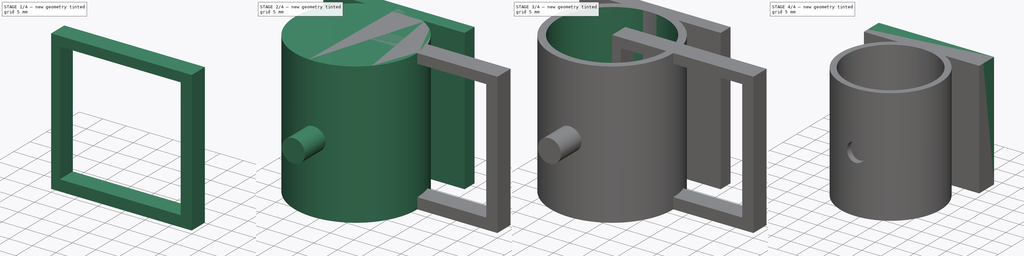
[diagram: build sequence overview — one tinted view per stage of 4, left to right]
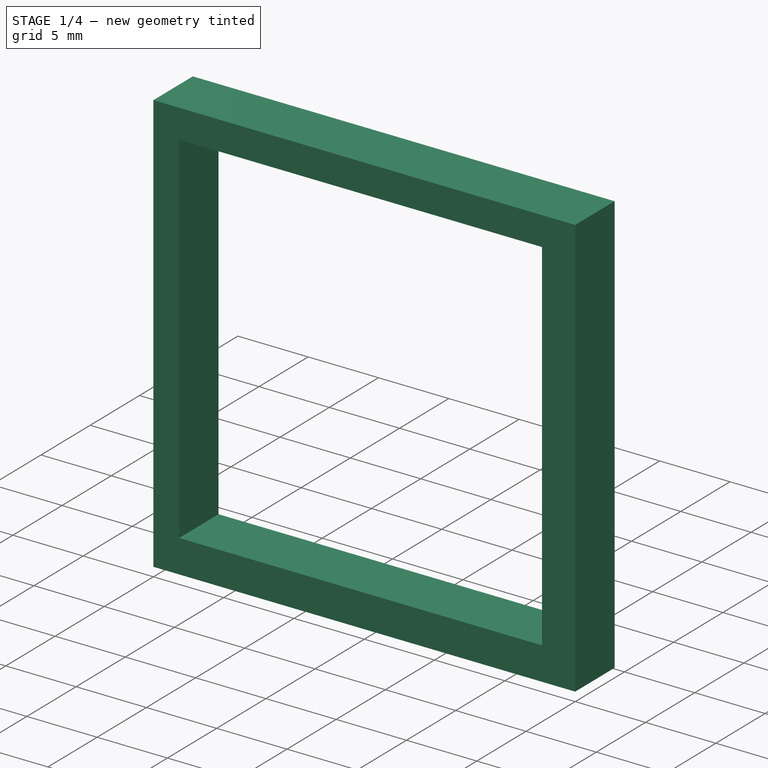
[diagram: stage 1 of 4 — iso view after this stage's code; geometry added in this stage tinted green]
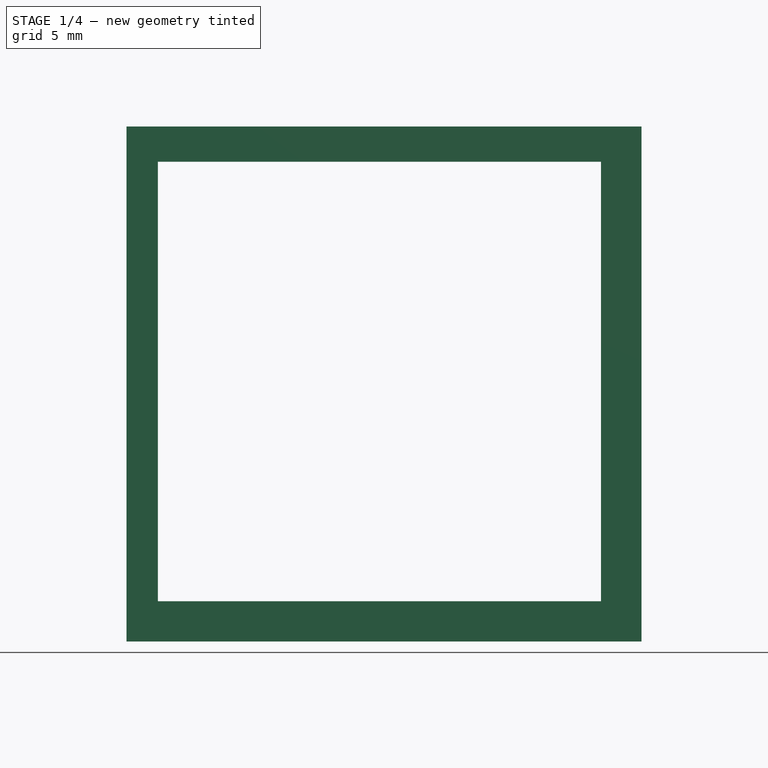
[diagram: stage 1 of 4 — front view after this stage's code; geometry added in this stage tinted green]
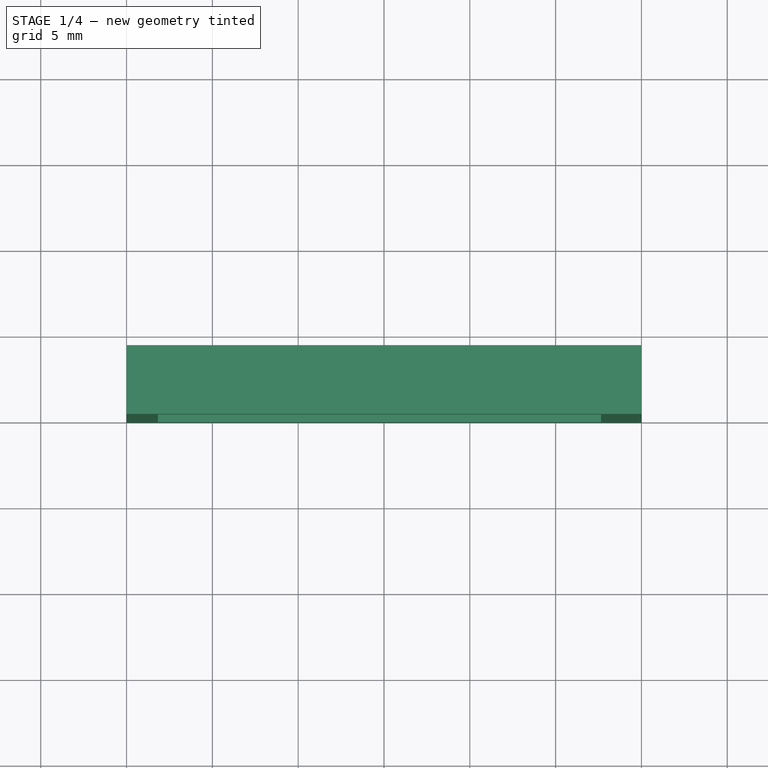
[diagram: stage 1 of 4 — top view after this stage's code; geometry added in this stage tinted green]
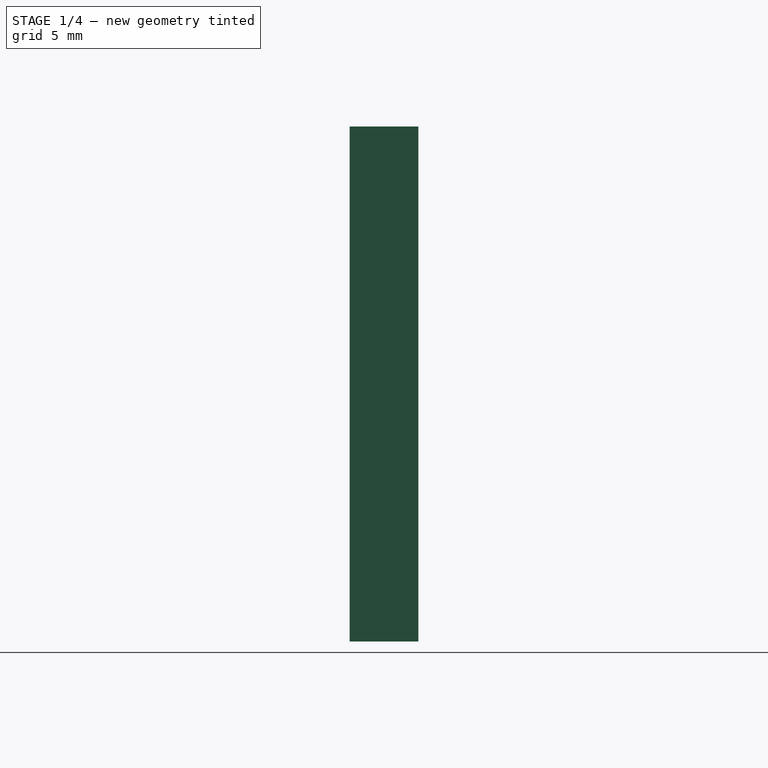
[diagram: stage 1 of 4 — right view after this stage's code; geometry added in this stage tinted green]
FCSTD DOCUMENT  (FreeCAD 0.21R33771 (Git))
Label: laserholder
License: All rights reserved
LicenseURL: https://en.wikipedia.org/wiki/All_rights_reserved
objects: Part::Compound×3, PartDesign::Body×2, Part::Box×2, PartDesign::AdditiveCylinder×1, PartDesign::SubtractiveCylinder×1, Part::Cylinder×1, Part::Cut×1, PartDesign::FeatureBase×1, Sketcher::SketchObject×1, PartDesign::Pocket×1
note: 17 computed .brp shape members not serialized (recipe doc carries the construction recipe); baked Part::Feature solids carry a one-line shape summary decoded from their .brp

FEATURE [Part::Box] Box001  label="Cube001"
  AttacherType = Attacher::AttachEngine3D
  Height = 30
  Length = 30
  Placement = pos=(-15,13,0) rot=(0,0,1;0rad)
  Width = 4
FEATURE [PartDesign::FeatureBase] BaseFeature
  BaseFeature = -> Box001
FEATURE [Sketcher::SketchObject] Sketch
  FullyConstrained = false
  MapMode = 5
  Placement = pos=(0,4,0) rot=(0,0.707107,0.707107;3.14159rad)
  Support = -> [BaseFeature]
  sketch-geometry (4):
    g0: LineSegment StartX=-27.6407 StartY=27.9492 StartZ=0 EndX=-1.82824 EndY=27.9492 EndZ=0
    g1: LineSegment StartX=-1.82824 StartY=27.9492 StartZ=0 EndX=-1.82824 EndY=2.34215 EndZ=0
    g2: LineSegment StartX=-1.82824 StartY=2.34215 StartZ=0 EndX=-27.6407 EndY=2.34215 EndZ=0
    g3: LineSegment StartX=-27.6407 StartY=2.34215 StartZ=0 EndX=-27.6407 EndY=27.9492 EndZ=0
  constraints (8):
    c: Coincident(g0,g1)
    c: Coincident(g1,g2)
    c: Coincident(g2,g3)
    c: Coincident(g3,g0)
    c: Horizontal(g0)
    c: Horizontal(g2)
    c: Vertical(g1)
    c: Vertical(g3)
FEATURE [PartDesign::Pocket] Pocket
  BaseFeature = -> BaseFeature
  Direction = (0,-1,2e-16)
  Length = 4
  Length2 = 5
  Profile = -> Sketch
  ReferenceAxis = -> Sketch [N_Axis]
  Type = 0
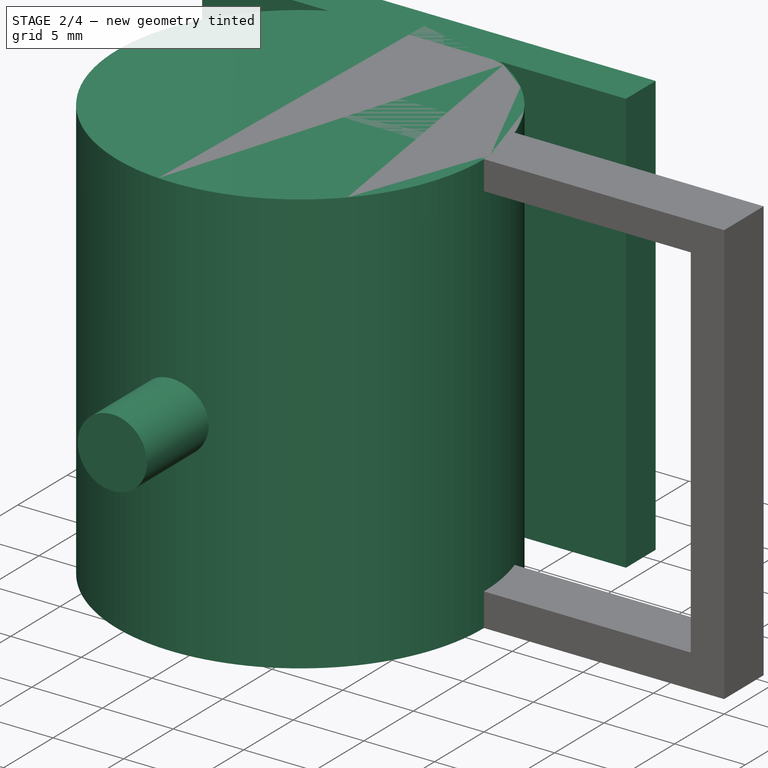
[diagram: stage 2 of 4 — iso view after this stage's code; geometry added in this stage tinted green]
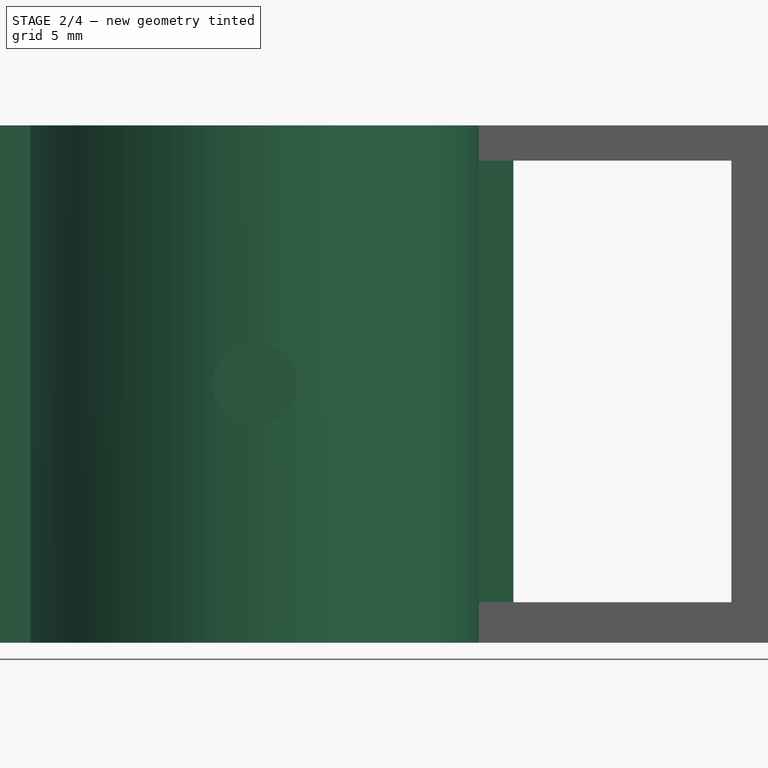
[diagram: stage 2 of 4 — front view after this stage's code; geometry added in this stage tinted green]
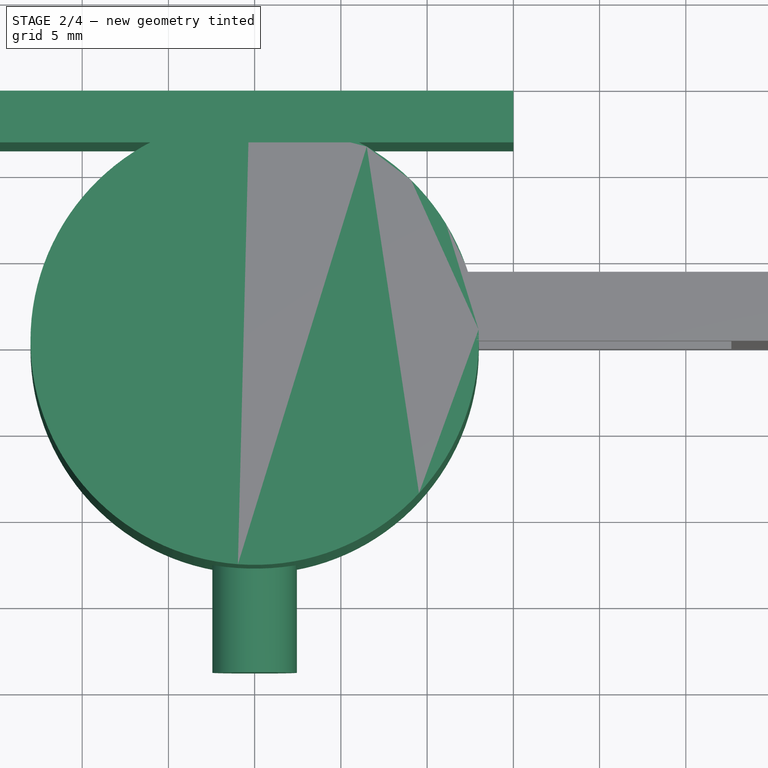
[diagram: stage 2 of 4 — top view after this stage's code; geometry added in this stage tinted green]
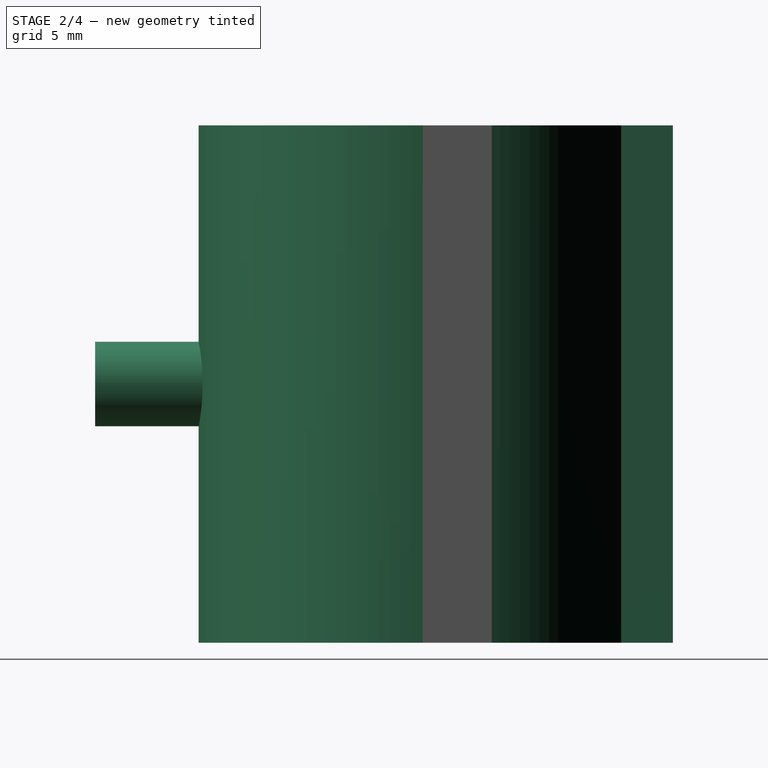
[diagram: stage 2 of 4 — right view after this stage's code; geometry added in this stage tinted green]
FEATURE [PartDesign::AdditiveCylinder] Cylinder
  Angle = 360
  AttacherType = Attacher::AttachEngine3D
  FirstAngle = 0
  Height = 30
  Radius = 13
  SecondAngle = 0
FEATURE [Part::Box] Box  label="Cube"
  AttacherType = Attacher::AttachEngine3D
  Height = 30
  Length = 30
  Placement = pos=(-15,11.5,0) rot=(0,0,1;0rad)
  Width = 3
FEATURE [Part::Cylinder] Cylinder002
  Angle = 360
  AttacherType = Attacher::AttachEngine3D
  FirstAngle = 0
  Height = 10
  Placement = pos=(0,-9,15) rot=(0.57735,0.57735,-0.57735;2.0944rad)
  Radius = 2.45
  SecondAngle = 0
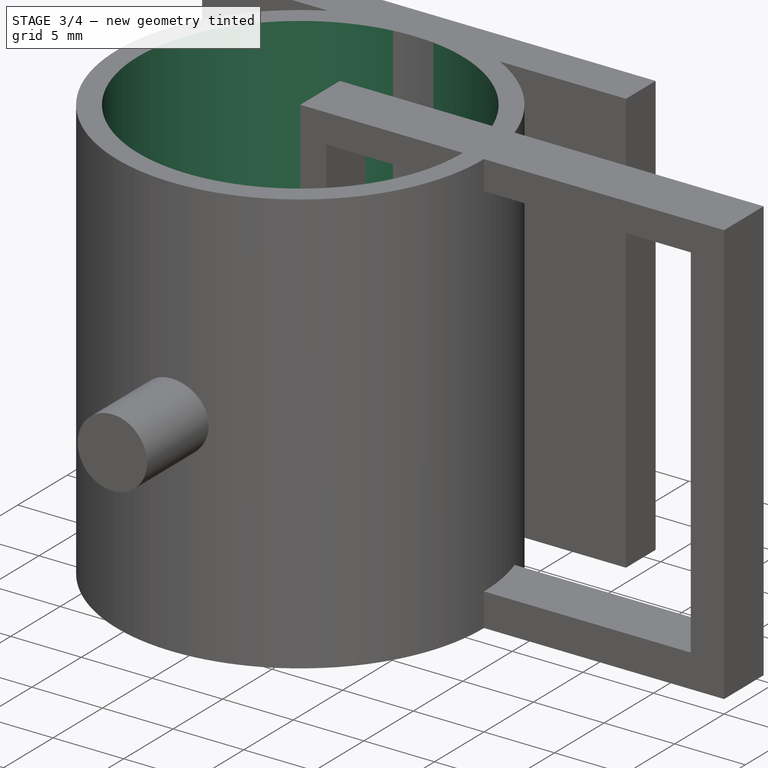
[diagram: stage 3 of 4 — iso view after this stage's code; geometry added in this stage tinted green]
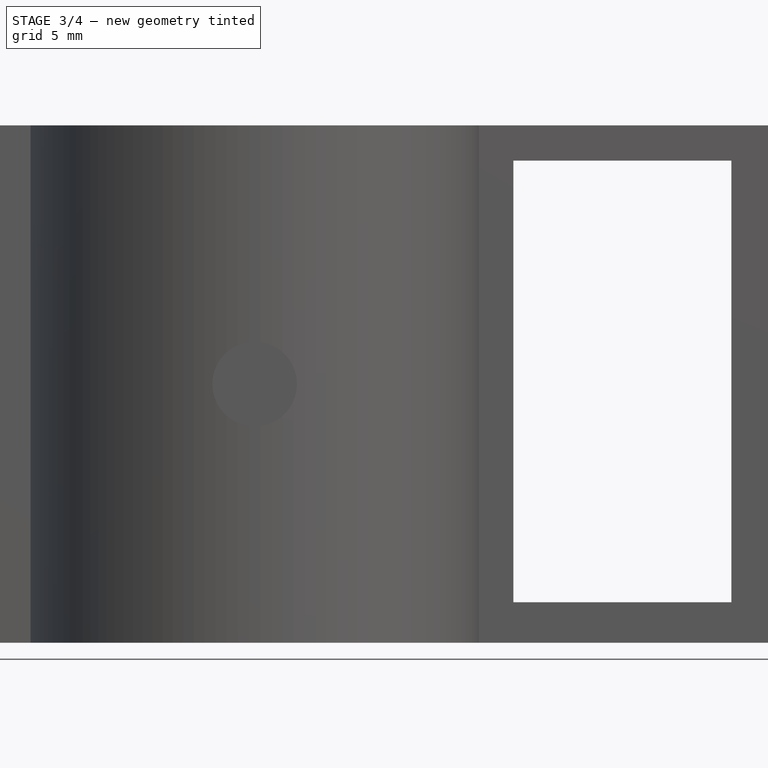
[diagram: stage 3 of 4 — front view after this stage's code; geometry added in this stage tinted green]
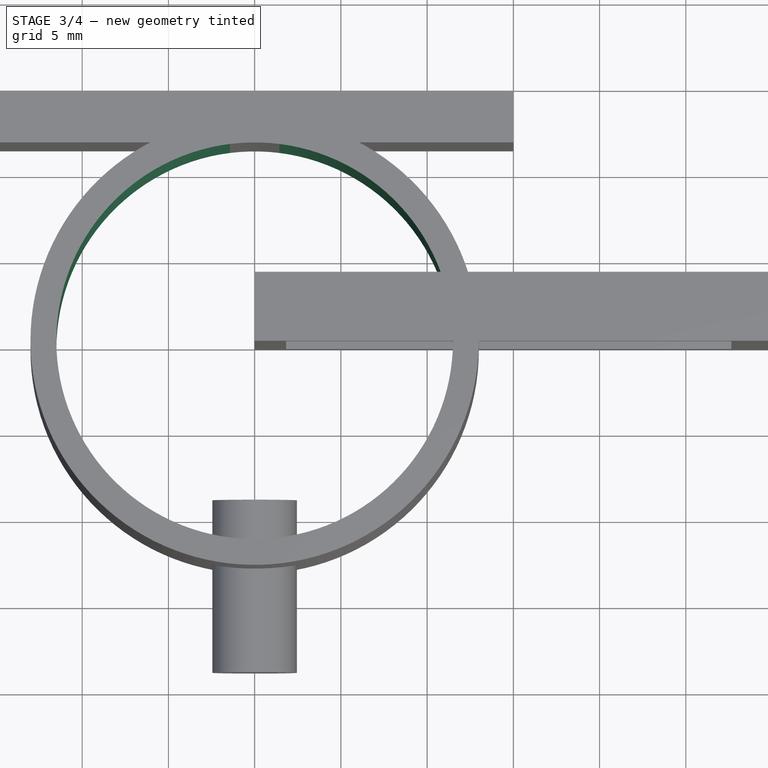
[diagram: stage 3 of 4 — top view after this stage's code; geometry added in this stage tinted green]
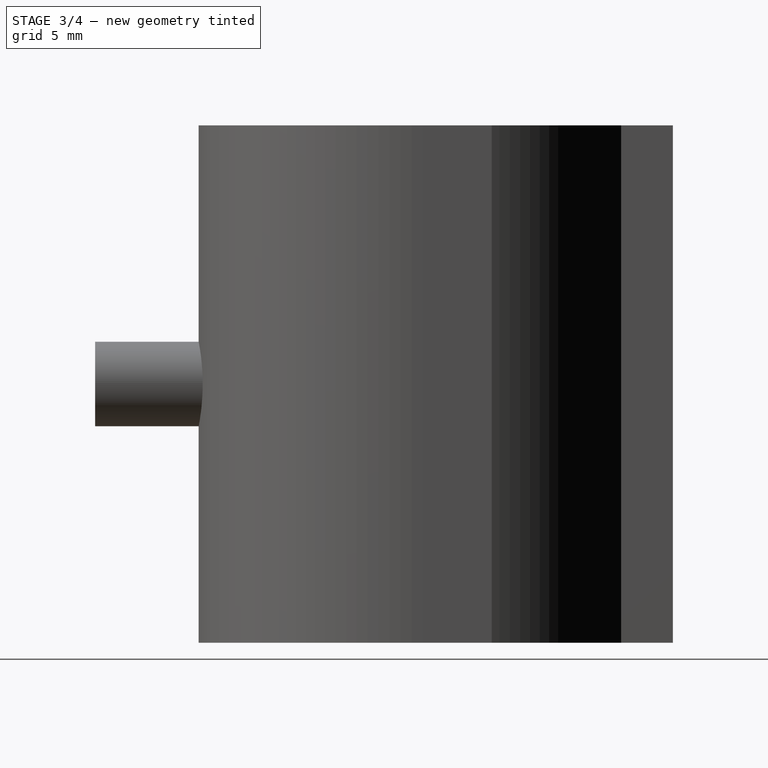
[diagram: stage 3 of 4 — right view after this stage's code; geometry added in this stage tinted green]
FEATURE [PartDesign::SubtractiveCylinder] Cylinder001
  Angle = 360
  AttacherType = Attacher::AttachEngine3D
  BaseFeature = -> Cylinder
  FirstAngle = 0
  Height = 40
  Radius = 11.5
  SecondAngle = 0
FEATURE [PartDesign::Body] Body
  Group = -> [Cylinder,Cylinder001]
  Origin = -> Origin
  Tip = -> Cylinder001
FEATURE [Part::Compound] Compound
  Links = -> [Cylinder001]
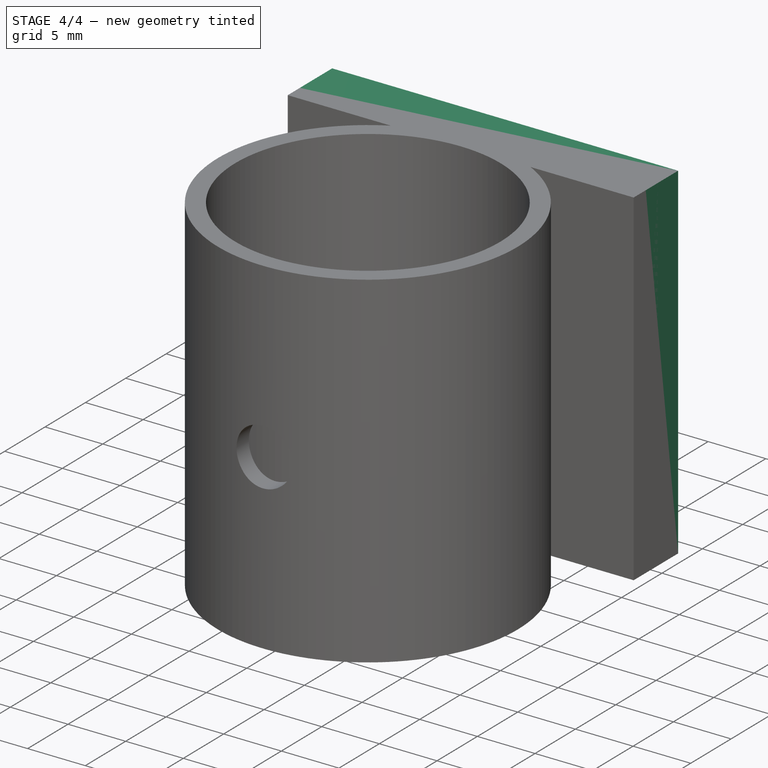
[diagram: stage 4 of 4 — iso view after this stage's code; geometry added in this stage tinted green]
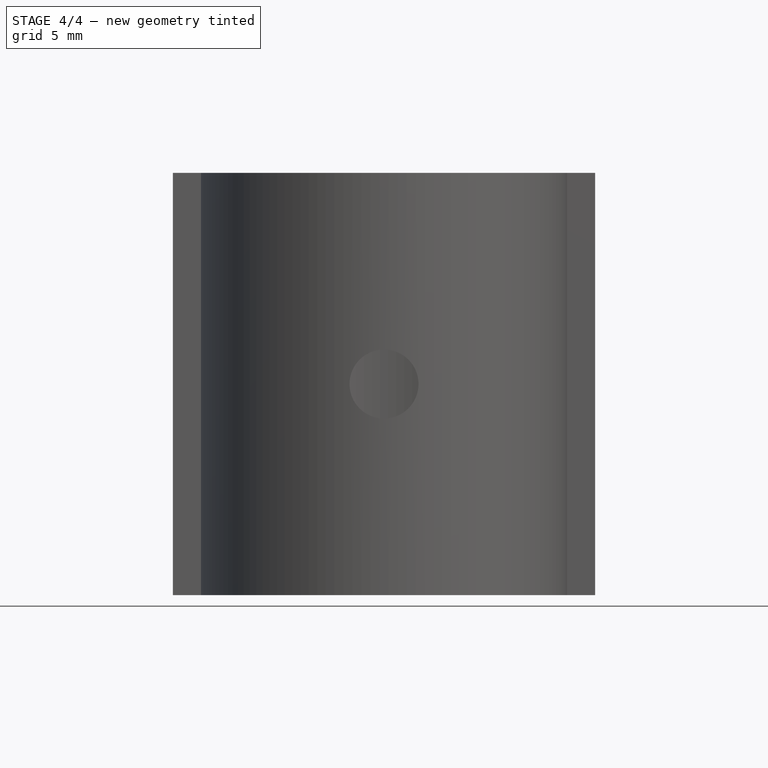
[diagram: stage 4 of 4 — front view after this stage's code; geometry added in this stage tinted green]
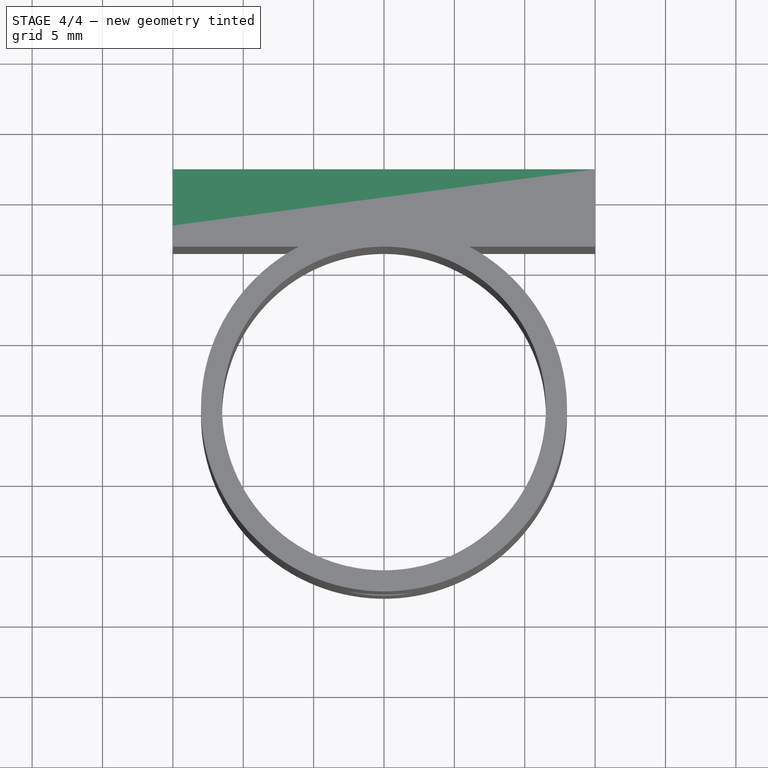
[diagram: stage 4 of 4 — top view after this stage's code; geometry added in this stage tinted green]
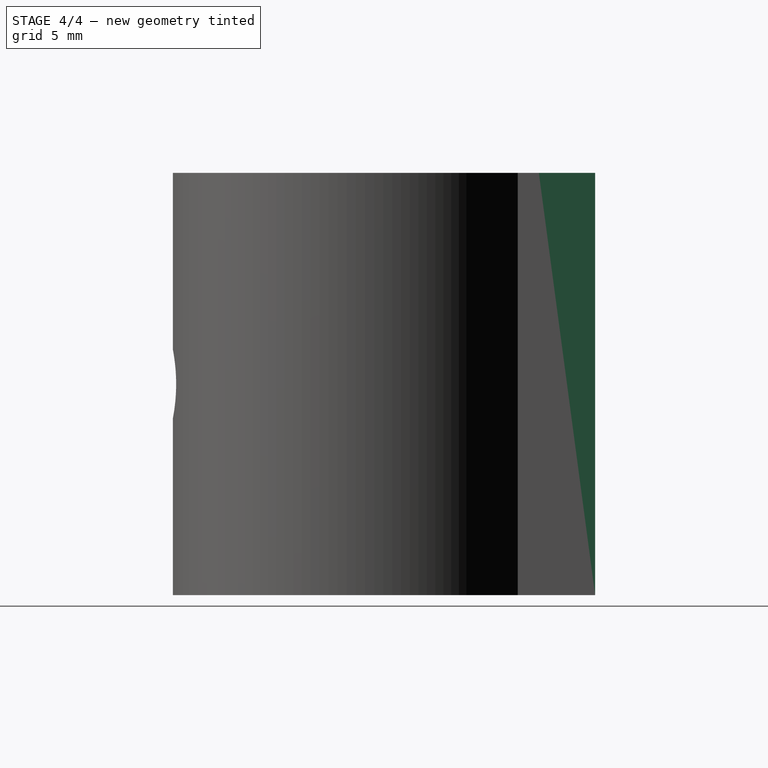
[diagram: stage 4 of 4 — right view after this stage's code; geometry added in this stage tinted green]
FEATURE [Part::Compound] Compound001
  Links = -> [Box,Compound]
FEATURE [Part::Cut] Cut
  Base = -> Compound001
  Tool = -> Cylinder002
FEATURE [PartDesign::Body] Body001
  BaseFeature = -> Box001
  Group = -> [BaseFeature,Sketch,Pocket]
  Origin = -> Origin001
  Placement = pos=(-15,13,0) rot=(0,0,1;0rad)
  Tip = -> Pocket
FEATURE [Part::Compound] Compound002
  Links = -> [Body001,Cut]
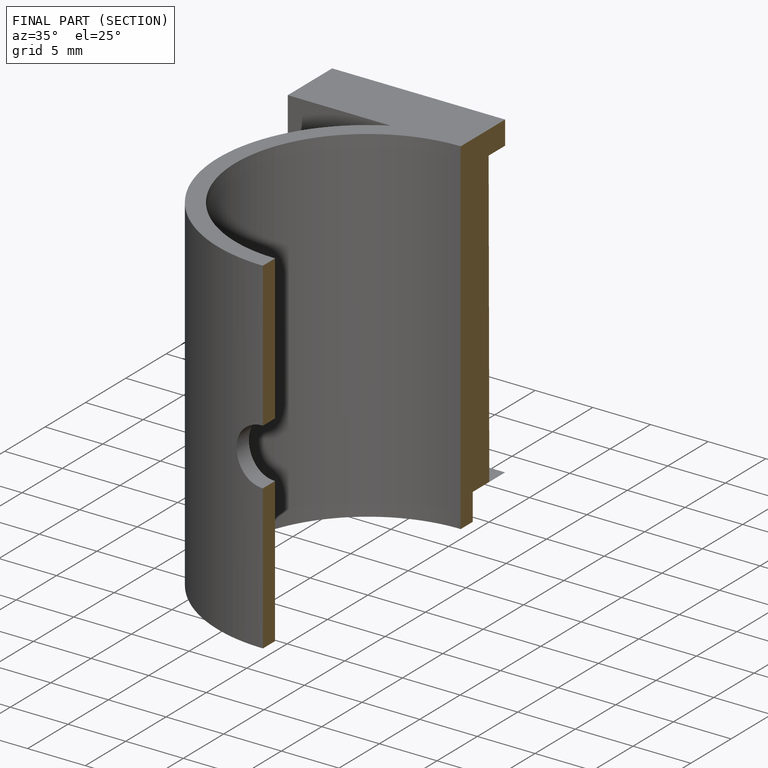
[diagram: finished part — half-section view (interior)]
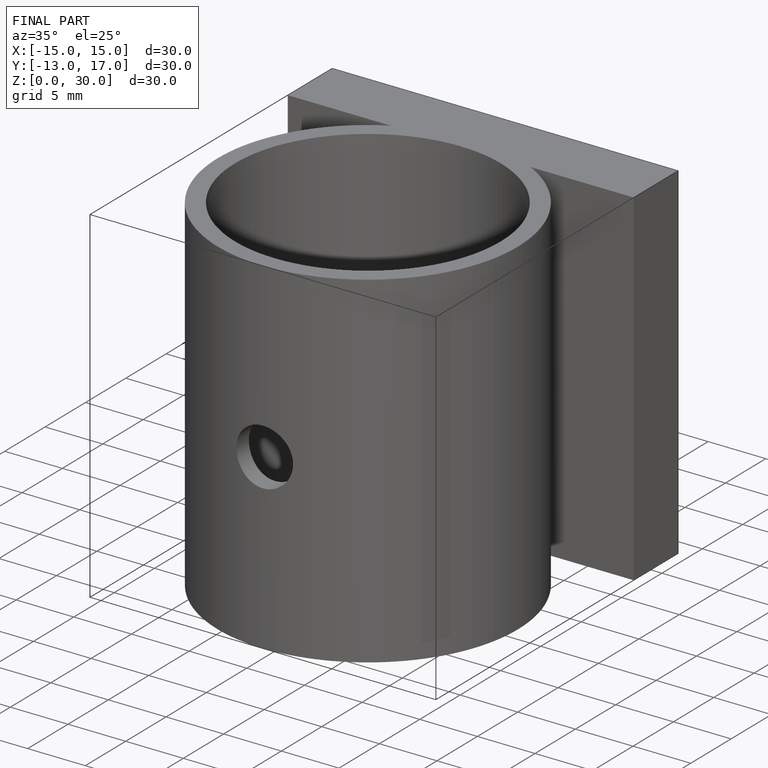
[diagram: finished part — iso view with bounding-box wireframe]
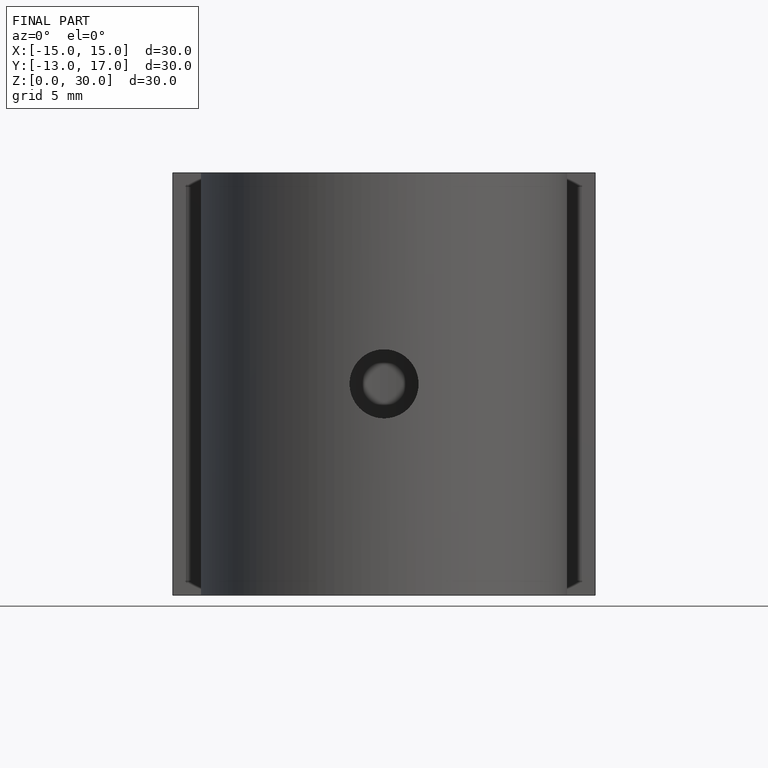
[diagram: finished part — front view with bounding-box wireframe]
